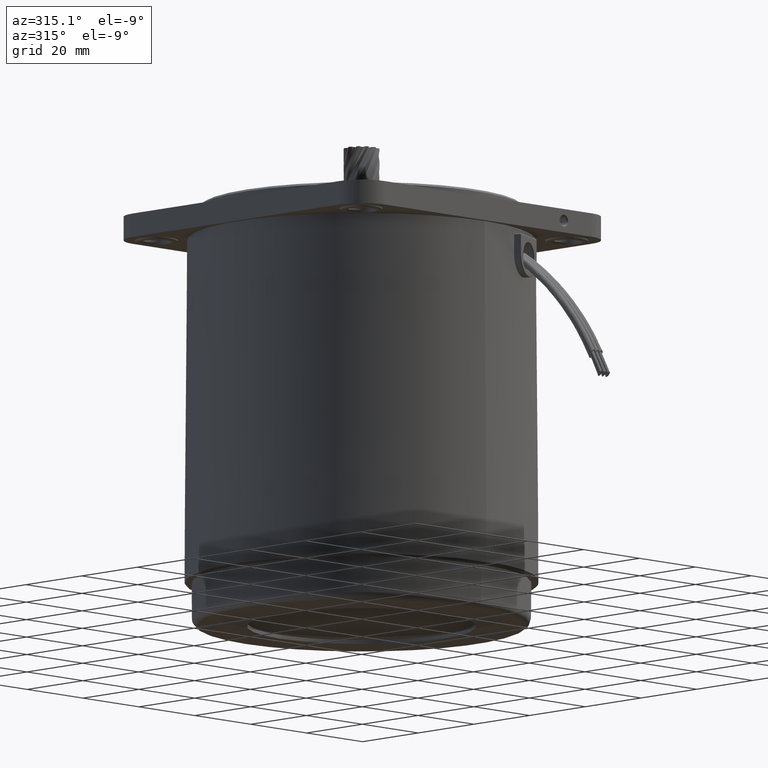
[diagram: clean part render]
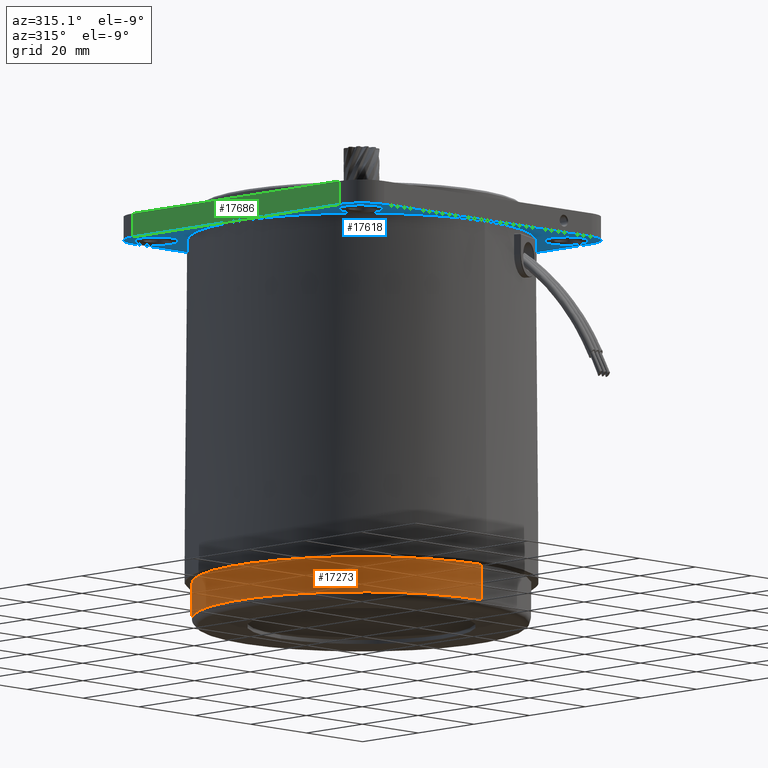
[diagram: same view with three faces highlighted in distinct colors, each labeled with its STEP entity id]
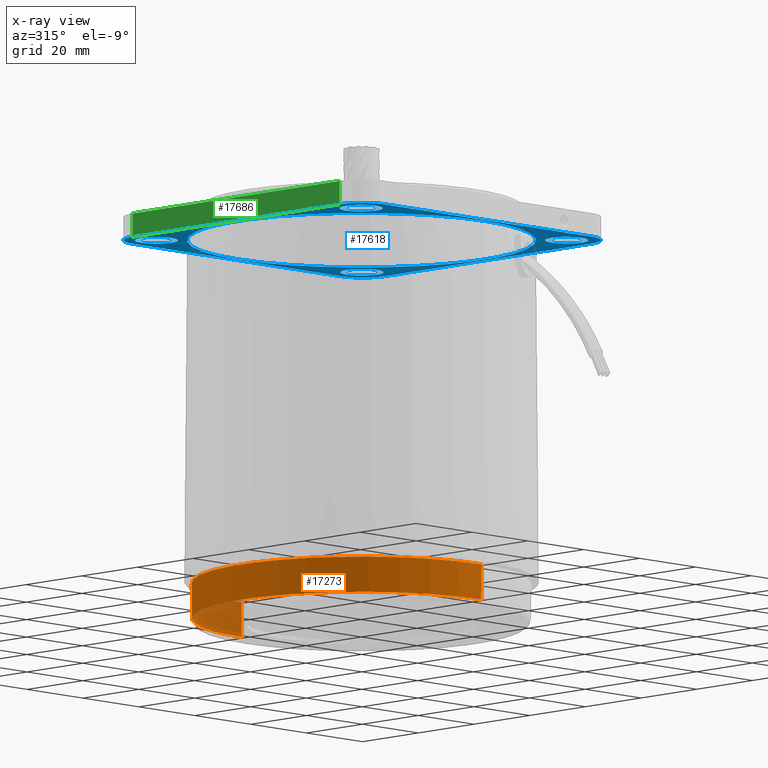
[diagram: x-ray of the same camera — body ghosted, the three highlighted faces saturated]
A machine part, auxiliary view with three faces highlighted in distinct colors.
The next image is the same camera in x-ray (body ghosted, the three faces saturated) — at least one of them is partly hidden behind the body in this view.
Their STEP definitions:

[orange] entity #17273 — the highlighted conical surface has half-angle 0.5 deg.
#11627 = CARTESIAN_POINT ( 'NONE',  ( 1.982546929003252200, -5.272918674955787400E-015, -43.01730142493838100 ) ) ;
#11689 = DIRECTION ( 'NONE',  ( 0.0000000000000000000, 0.0000000000000000000, -1.000000000000000000 ) ) ;
#11690 = DIRECTION ( 'NONE',  ( 1.000000000000000000, 0.0000000000000000000, 0.0000000000000000000 ) ) ;
#11691 = CARTESIAN_POINT ( 'NONE',  ( 1.982546929003252200, 0.0000000000000000000, 0.0000000000000000000 ) ) ;
#11701 = DIRECTION ( 'NONE',  ( 0.0000000000000000000, 0.0000000000000000000, 1.000000000000000000 ) ) ;
#11702 = DIRECTION ( 'NONE',  ( -1.000000000000000000, 0.0000000000000000000, 0.0000000000000000000 ) ) ;
#11703 = CARTESIAN_POINT ( 'NONE',  ( 10.99999999999999600, 0.0000000000000000000, 0.0000000000000000000 ) ) ;
#11704 = AXIS2_PLACEMENT_3D ( 'NONE', #11703, #11702, #11701 ) ;
#11706 = CARTESIAN_POINT ( 'NONE',  ( 0.0000000000000000000, -5.265981236333618500E-015, -43.00000000000000000 ) ) ;
#11707 = LINE ( 'NONE', #11706, #11734 ) ;
#11708 = CIRCLE ( 'NONE', #11714, 43.01730142493838100 ) ;
#11709 = CIRCLE ( 'NONE', #11704, 43.09599554569834400 ) ;
#11710 = CARTESIAN_POINT ( 'NONE',  ( 10.99999999999999600, 0.0000000000000000000, 43.09599554569834400 ) ) ;
#11714 = AXIS2_PLACEMENT_3D ( 'NONE', #11691, #11690, #11689 ) ;
#11724 = CONICAL_SURFACE ( 'NONE', #11732, 43.00000000000000000, 0.008726646259971666800 ) ;
#11725 = FACE_OUTER_BOUND ( 'NONE', #17262, .T. ) ;
#11732 = AXIS2_PLACEMENT_3D ( 'NONE', #11736, #11771, #11770 ) ;
#11733 = DIRECTION ( 'NONE',  ( 0.9999619230641713100, -1.068692376572941500E-018, -0.008726535498373953800 ) ) ;
#11734 = VECTOR ( 'NONE', #11733, 1000.000000000000000 ) ;
#11736 = CARTESIAN_POINT ( 'NONE',  ( 0.0000000000000000000, 0.0000000000000000000, 0.0000000000000000000 ) ) ;
#11741 = CARTESIAN_POINT ( 'NONE',  ( 1.982546929003252200, 0.0000000000000000000, 43.01730142493838100 ) ) ;
#11770 = DIRECTION ( 'NONE',  ( 0.0000000000000000000, 0.0000000000000000000, 1.000000000000000000 ) ) ;
#11771 = DIRECTION ( 'NONE',  ( 1.000000000000000000, 0.0000000000000000000, 0.0000000000000000000 ) ) ;
#11780 = CARTESIAN_POINT ( 'NONE',  ( 10.99999999999999600, -5.277737300110807500E-015, -43.09599554569834400 ) ) ;
#11820 = DIRECTION ( 'NONE',  ( 0.9999619230641713100, 0.0000000000000000000, 0.008726535498373953800 ) ) ;
#11821 = VECTOR ( 'NONE', #11820, 1000.000000000000000 ) ;
#11822 = CARTESIAN_POINT ( 'NONE',  ( 0.0000000000000000000, 0.0000000000000000000, 43.00000000000000000 ) ) ;
#11823 = LINE ( 'NONE', #11822, #11821 ) ;
#17220 = VERTEX_POINT ( 'NONE', #11627 ) ;
#17239 = EDGE_CURVE ( 'NONE', #17275, #17241, #11709, .T. ) ;
#17241 = VERTEX_POINT ( 'NONE', #11710 ) ;
#17245 = EDGE_CURVE ( 'NONE', #17255, #17220, #11708, .T. ) ;
#17255 = VERTEX_POINT ( 'NONE', #11741 ) ;
#17258 = ORIENTED_EDGE ( 'NONE', *, *, #17261, .T. ) ;
#17261 = EDGE_CURVE ( 'NONE', #17220, #17275, #11707, .T. ) ;
#17262 = EDGE_LOOP ( 'NONE', ( #17263, #17258, #17311, #17267 ) ) ;
#17263 = ORIENTED_EDGE ( 'NONE', *, *, #17245, .T. ) ;
#17267 = ORIENTED_EDGE ( 'NONE', *, *, #17323, .F. ) ;
#17273 = ADVANCED_FACE ( 'NONE', ( #11725 ), #11724, .T. ) ;
#17275 = VERTEX_POINT ( 'NONE', #11780 ) ;
#17311 = ORIENTED_EDGE ( 'NONE', *, *, #17239, .T. ) ;
#17323 = EDGE_CURVE ( 'NONE', #17255, #17241, #11823, .T. ) ;

[blue] entity #17618 — the highlighted planar face has unit normal (-0, -0, -1).
#4795 = EDGE_LOOP ( 'NONE', ( #17690, #17683 ) ) ;
#11751 = DIRECTION ( 'NONE',  ( 0.0000000000000000000, 0.0000000000000000000, 1.000000000000000000 ) ) ;
#11752 = DIRECTION ( 'NONE',  ( -1.000000000000000000, 0.0000000000000000000, 0.0000000000000000000 ) ) ;
#11753 = CARTESIAN_POINT ( 'NONE',  ( 99.00000000000000000, 36.76955262170045600, -36.76955262170045600 ) ) ;
#11754 = AXIS2_PLACEMENT_3D ( 'NONE', #11753, #11752, #11751 ) ;
#11755 = CIRCLE ( 'NONE', #11754, 5.499999999999998200 ) ;
#11793 = CARTESIAN_POINT ( 'NONE',  ( 99.00000000000000000, 36.76955262170085300, 42.26955262170007200 ) ) ;
#11803 = CARTESIAN_POINT ( 'NONE',  ( 99.00000000000000000, 36.76955262170045600, -42.26955262170045600 ) ) ;
#11813 = CIRCLE ( 'NONE', #11874, 5.499999999999998200 ) ;
#11824 = CARTESIAN_POINT ( 'NONE',  ( 99.00000000000000000, -36.76955262170020700, 42.26955262170071100 ) ) ;
#11871 = DIRECTION ( 'NONE',  ( 0.0000000000000000000, 0.0000000000000000000, 1.000000000000000000 ) ) ;
#11872 = DIRECTION ( 'NONE',  ( -1.000000000000000000, 0.0000000000000000000, 0.0000000000000000000 ) ) ;
#11873 = CARTESIAN_POINT ( 'NONE',  ( 99.00000000000000000, 36.76955262170085300, 36.76955262170007200 ) ) ;
#11874 = AXIS2_PLACEMENT_3D ( 'NONE', #11873, #11872, #11871 ) ;
#11876 = CARTESIAN_POINT ( 'NONE',  ( 99.00000000000000000, -36.76955262170058300, -42.26955262170031300 ) ) ;
#11881 = CARTESIAN_POINT ( 'NONE',  ( 99.00000000000000000, -36.76955262170020700, 36.76955262170072600 ) ) ;
#11885 = CARTESIAN_POINT ( 'NONE',  ( 99.00000000000000000, -36.76955262170058300, -31.26955262170031700 ) ) ;
#11925 = DIRECTION ( 'NONE',  ( 0.0000000000000000000, 0.0000000000000000000, 1.000000000000000000 ) ) ;
#11926 = DIRECTION ( 'NONE',  ( -1.000000000000000000, 0.0000000000000000000, 0.0000000000000000000 ) ) ;
#11927 = AXIS2_PLACEMENT_3D ( 'NONE', #11881, #11926, #11925 ) ;
#11931 = CIRCLE ( 'NONE', #11927, 5.499999999999991100 ) ;
#11932 = CARTESIAN_POINT ( 'NONE',  ( 99.00000000000000000, -36.76955262170020700, 31.26955262170073300 ) ) ;
#11982 = DIRECTION ( 'NONE',  ( 0.0000000000000000000, 0.0000000000000000000, 1.000000000000000000 ) ) ;
#11983 = DIRECTION ( 'NONE',  ( -1.000000000000000000, 0.0000000000000000000, 0.0000000000000000000 ) ) ;
#11984 = AXIS2_PLACEMENT_3D ( 'NONE', #11994, #11983, #11982 ) ;
#11993 = CIRCLE ( 'NONE', #11984, 5.499999999999998200 ) ;
#11994 = CARTESIAN_POINT ( 'NONE',  ( 99.00000000000000000, -36.76955262170058300, -36.76955262170031300 ) ) ;
#12141 = CARTESIAN_POINT ( 'NONE',  ( 99.00000000000000000, 36.76955262170045600, -31.26955262170046300 ) ) ;
#12162 = CARTESIAN_POINT ( 'NONE',  ( 99.00000000000000000, 36.76955262170085300, 31.26955262170007200 ) ) ;
#12185 = AXIS2_PLACEMENT_3D ( 'NONE', #12273, #12272, #12271 ) ;
#12236 = CARTESIAN_POINT ( 'NONE',  ( 99.00000000000000000, -5.464107230416688200E-015, 44.23604008871487300 ) ) ;
#12255 = CARTESIAN_POINT ( 'NONE',  ( 99.00000000000000000, 0.0000000000000000000, -44.23604008871487300 ) ) ;
#12271 = DIRECTION ( 'NONE',  ( 0.0000000000000000000, 0.0000000000000000000, -1.000000000000000000 ) ) ;
#12272 = DIRECTION ( 'NONE',  ( 1.000000000000000000, 0.0000000000000000000, 0.0000000000000000000 ) ) ;
#12273 = CARTESIAN_POINT ( 'NONE',  ( 99.00000000000000000, 0.0000000000000000000, 0.0000000000000000000 ) ) ;
#12276 = CIRCLE ( 'NONE', #12185, 44.23604008871487300 ) ;
#12482 = CARTESIAN_POINT ( 'NONE',  ( 99.00000000000000000, -45.00000000000000000, 36.99999999999995000 ) ) ;
#12486 = CARTESIAN_POINT ( 'NONE',  ( 99.00000000000000000, -37.00000000000000000, 37.00000000000000700 ) ) ;
#12489 = CIRCLE ( 'NONE', #12516, 44.23604008871487300 ) ;
#12495 = CARTESIAN_POINT ( 'NONE',  ( 99.00000000000000000, 45.29999999999999000, -37.29999999999998300 ) ) ;
#12507 = DIRECTION ( 'NONE',  ( 0.0000000000000000000, 0.0000000000000000000, 1.000000000000000000 ) ) ;
#12508 = DIRECTION ( 'NONE',  ( 1.000000000000000000, 0.0000000000000000000, -0.0000000000000000000 ) ) ;
#12509 = AXIS2_PLACEMENT_3D ( 'NONE', #12486, #12508, #12507 ) ;
#12511 = CARTESIAN_POINT ( 'NONE',  ( 99.00000000000000000, -36.99999999999994300, 45.00000000000000700 ) ) ;
#12513 = DIRECTION ( 'NONE',  ( 0.0000000000000000000, 0.0000000000000000000, -1.000000000000000000 ) ) ;
#12514 = DIRECTION ( 'NONE',  ( 1.000000000000000000, 0.0000000000000000000, 0.0000000000000000000 ) ) ;
#12515 = CARTESIAN_POINT ( 'NONE',  ( 99.00000000000000000, 0.0000000000000000000, 0.0000000000000000000 ) ) ;
#12516 = AXIS2_PLACEMENT_3D ( 'NONE', #12515, #12514, #12513 ) ;
#12520 = DIRECTION ( 'NONE',  ( 0.0000000000000000000, 0.0000000000000000000, 1.000000000000000000 ) ) ;
#12521 = DIRECTION ( 'NONE',  ( -1.000000000000000000, 0.0000000000000000000, 0.0000000000000000000 ) ) ;
#12522 = CARTESIAN_POINT ( 'NONE',  ( 99.00000000000000000, -36.76955262170058300, -36.76955262170031300 ) ) ;
#12523 = AXIS2_PLACEMENT_3D ( 'NONE', #12522, #12521, #12520 ) ;
#12524 = CIRCLE ( 'NONE', #12523, 5.499999999999998200 ) ;
#12525 = CIRCLE ( 'NONE', #12509, 8.000000000000000000 ) ;
#12776 = DIRECTION ( 'NONE',  ( 0.0000000000000000000, 0.0000000000000000000, 1.000000000000000000 ) ) ;
#12820 = DIRECTION ( 'NONE',  ( -0.0000000000000000000, -9.339022750884561700E-017, 1.000000000000000000 ) ) ;
#12821 = VECTOR ( 'NONE', #12820, 1000.000000000000000 ) ;
#12822 = CIRCLE ( 'NONE', #12870, 5.499999999999998200 ) ;
#12823 = LINE ( 'NONE', #12862, #12821 ) ;
#12824 = FACE_BOUND ( 'NONE', #17666, .T. ) ;
#12825 = DIRECTION ( 'NONE',  ( 0.0000000000000000000, 0.0000000000000000000, 1.000000000000000000 ) ) ;
#12826 = DIRECTION ( 'NONE',  ( 1.000000000000000000, 0.0000000000000000000, -0.0000000000000000000 ) ) ;
#12827 = CARTESIAN_POINT ( 'NONE',  ( 99.00000000000000000, 37.29999999999998300, -37.29999999999998300 ) ) ;
#12838 = CIRCLE ( 'NONE', #12850, 8.000000000000003600 ) ;
#12839 = FACE_BOUND ( 'NONE', #17625, .T. ) ;
#12840 = FACE_OUTER_BOUND ( 'NONE', #17539, .T. ) ;
#12842 = CARTESIAN_POINT ( 'NONE',  ( 99.00000000000000000, -37.00000000000000000, 37.00000000000000700 ) ) ;
#12843 = PLANE ( 'NONE',  #12848 ) ;
#12844 = FACE_BOUND ( 'NONE', #17695, .T. ) ;
#12845 = FACE_BOUND ( 'NONE', #4795, .T. ) ;
#12846 = DIRECTION ( 'NONE',  ( -1.000000000000000000, -0.0000000000000000000, 0.0000000000000000000 ) ) ;
#12847 = FACE_BOUND ( 'NONE', #17600, .T. ) ;
#12848 = AXIS2_PLACEMENT_3D ( 'NONE', #12842, #12846, #12776 ) ;
#12849 = CARTESIAN_POINT ( 'NONE',  ( 99.00000000000000000, 45.29999999999998300, 37.00000000000000700 ) ) ;
#12850 = AXIS2_PLACEMENT_3D ( 'NONE', #12827, #12826, #12825 ) ;
#12851 = CARTESIAN_POINT ( 'NONE',  ( 99.00000000000000000, 37.29999999999998300, -45.29999999999998300 ) ) ;
#12862 = CARTESIAN_POINT ( 'NONE',  ( 99.00000000000000000, 45.29999999999998300, 37.00000000000000700 ) ) ;
#12866 = CARTESIAN_POINT ( 'NONE',  ( 99.00000000000000000, -45.00000000000000000, -37.29999999999998300 ) ) ;
#12867 = DIRECTION ( 'NONE',  ( 0.0000000000000000000, 0.0000000000000000000, 1.000000000000000000 ) ) ;
#12868 = DIRECTION ( 'NONE',  ( -1.000000000000000000, 0.0000000000000000000, 0.0000000000000000000 ) ) ;
#12869 = CARTESIAN_POINT ( 'NONE',  ( 99.00000000000000000, 36.76955262170085300, 36.76955262170007200 ) ) ;
#12870 = AXIS2_PLACEMENT_3D ( 'NONE', #12869, #12868, #12867 ) ;
#12899 = DIRECTION ( 'NONE',  ( 0.0000000000000000000, 0.0000000000000000000, 1.000000000000000000 ) ) ;
#12900 = DIRECTION ( 'NONE',  ( 1.000000000000000000, 0.0000000000000000000, -0.0000000000000000000 ) ) ;
#12901 = CARTESIAN_POINT ( 'NONE',  ( 99.00000000000000000, 37.29999999999998300, 37.00000000000000700 ) ) ;
#12902 = AXIS2_PLACEMENT_3D ( 'NONE', #12901, #12900, #12899 ) ;
#12906 = CIRCLE ( 'NONE', #12902, 8.000000000000000000 ) ;
#13009 = CARTESIAN_POINT ( 'NONE',  ( 99.00000000000000000, -36.76955262170020700, 36.76955262170072600 ) ) ;
#13011 = AXIS2_PLACEMENT_3D ( 'NONE', #13009, #13044, #13043 ) ;
#13013 = DIRECTION ( 'NONE',  ( -0.0000000000000000000, -1.000000000000000000, -0.0000000000000000000 ) ) ;
#13014 = VECTOR ( 'NONE', #13013, 1000.000000000000000 ) ;
#13015 = CARTESIAN_POINT ( 'NONE',  ( 99.00000000000000000, -36.99999999999994300, 45.00000000000000700 ) ) ;
#13016 = CARTESIAN_POINT ( 'NONE',  ( 99.00000000000000000, -37.00000000000000000, -45.29999999999998300 ) ) ;
#13017 = LINE ( 'NONE', #13015, #13014 ) ;
#13018 = DIRECTION ( 'NONE',  ( 0.0000000000000000000, 0.0000000000000000000, -1.000000000000000000 ) ) ;
#13019 = VECTOR ( 'NONE', #13018, 1000.000000000000000 ) ;
#13020 = CARTESIAN_POINT ( 'NONE',  ( 99.00000000000000000, -45.00000000000000000, 36.99999999999995000 ) ) ;
#13021 = LINE ( 'NONE', #13020, #13019 ) ;
#13022 = CARTESIAN_POINT ( 'NONE',  ( 99.00000000000000000, 37.29999999999998300, 45.00000000000000700 ) ) ;
#13036 = DIRECTION ( 'NONE',  ( 0.0000000000000000000, 0.0000000000000000000, -1.000000000000000000 ) ) ;
#13037 = DIRECTION ( 'NONE',  ( 1.000000000000000000, 0.0000000000000000000, 0.0000000000000000000 ) ) ;
#13038 = CARTESIAN_POINT ( 'NONE',  ( 99.00000000000000000, -37.00000000000000000, -37.29999999999998300 ) ) ;
#13040 = CARTESIAN_POINT ( 'NONE',  ( 99.00000000000000000, -37.00000000000000000, -45.29999999999998300 ) ) ;
#13041 = LINE ( 'NONE', #13040, #13207 ) ;
#13043 = DIRECTION ( 'NONE',  ( 0.0000000000000000000, 0.0000000000000000000, 1.000000000000000000 ) ) ;
#13044 = DIRECTION ( 'NONE',  ( -1.000000000000000000, 0.0000000000000000000, 0.0000000000000000000 ) ) ;
#13141 = AXIS2_PLACEMENT_3D ( 'NONE', #13038, #13037, #13036 ) ;
#13142 = CIRCLE ( 'NONE', #13011, 5.499999999999991100 ) ;
#13144 = CIRCLE ( 'NONE', #13141, 8.000000000000000000 ) ;
#13206 = DIRECTION ( 'NONE',  ( 0.0000000000000000000, 1.000000000000000000, 0.0000000000000000000 ) ) ;
#13207 = VECTOR ( 'NONE', #13206, 1000.000000000000000 ) ;
#13634 = DIRECTION ( 'NONE',  ( 0.0000000000000000000, 0.0000000000000000000, 1.000000000000000000 ) ) ;
#13635 = DIRECTION ( 'NONE',  ( -1.000000000000000000, 0.0000000000000000000, 0.0000000000000000000 ) ) ;
#13636 = CARTESIAN_POINT ( 'NONE',  ( 99.00000000000000000, 36.76955262170045600, -36.76955262170045600 ) ) ;
#13637 = AXIS2_PLACEMENT_3D ( 'NONE', #13636, #13635, #13634 ) ;
#13641 = CIRCLE ( 'NONE', #13637, 5.499999999999998200 ) ;
#17283 = EDGE_CURVE ( 'NONE', #17481, #17297, #11755, .T. ) ;
#17297 = VERTEX_POINT ( 'NONE', #11803 ) ;
#17300 = VERTEX_POINT ( 'NONE', #11793 ) ;
#17327 = VERTEX_POINT ( 'NONE', #11824 ) ;
#17329 = EDGE_CURVE ( 'NONE', #17300, #17501, #11813, .T. ) ;
#17360 = VERTEX_POINT ( 'NONE', #11885 ) ;
#17362 = VERTEX_POINT ( 'NONE', #11876 ) ;
#17364 = EDGE_CURVE ( 'NONE', #17327, #17395, #11931, .T. ) ;
#17395 = VERTEX_POINT ( 'NONE', #11932 ) ;
#17398 = EDGE_CURVE ( 'NONE', #17360, #17362, #11993, .T. ) ;
#17481 = VERTEX_POINT ( 'NONE', #12141 ) ;
#17501 = VERTEX_POINT ( 'NONE', #12162 ) ;
#17525 = VERTEX_POINT ( 'NONE', #12236 ) ;
#17539 = EDGE_LOOP ( 'NONE', ( #17615, #17637, #17645, #17616, #17639, #17638, #17644, #17646 ) ) ;
#17541 = EDGE_CURVE ( 'NONE', #17525, #17570, #12276, .T. ) ;
#17569 = ORIENTED_EDGE ( 'NONE', *, *, #17594, .F. ) ;
#17570 = VERTEX_POINT ( 'NONE', #12255 ) ;
#17578 = VERTEX_POINT ( 'NONE', #12495 ) ;
#17594 = EDGE_CURVE ( 'NONE', #17362, #17360, #12524, .T. ) ;
#17595 = EDGE_CURVE ( 'NONE', #17570, #17525, #12489, .T. ) ;
#17597 = VERTEX_POINT ( 'NONE', #12482 ) ;
#17600 = EDGE_LOOP ( 'NONE', ( #17612, #17569 ) ) ;
#17601 = EDGE_CURVE ( 'NONE', #17602, #17597, #12525, .T. ) ;
#17602 = VERTEX_POINT ( 'NONE', #12511 ) ;
#17612 = ORIENTED_EDGE ( 'NONE', *, *, #17398, .F. ) ;
#17613 = ORIENTED_EDGE ( 'NONE', *, *, #17623, .F. ) ;
#17615 = ORIENTED_EDGE ( 'NONE', *, *, #17601, .F. ) ;
#17616 = ORIENTED_EDGE ( 'NONE', *, *, #17634, .F. ) ;
#17617 = EDGE_CURVE ( 'NONE', #17635, #17578, #12838, .T. ) ;
#17618 = ADVANCED_FACE ( 'NONE', ( #12847, #12839, #12840, #12845, #12844, #12824 ), #12843, .T. ) ;
#17619 = ORIENTED_EDGE ( 'NONE', *, *, #17329, .F. ) ;
#17622 = VERTEX_POINT ( 'NONE', #12849 ) ;
#17623 = EDGE_CURVE ( 'NONE', #17501, #17300, #12822, .T. ) ;
#17625 = EDGE_LOOP ( 'NONE', ( #17619, #17613 ) ) ;
#17634 = EDGE_CURVE ( 'NONE', #17578, #17622, #12823, .T. ) ;
#17635 = VERTEX_POINT ( 'NONE', #12851 ) ;
#17636 = EDGE_CURVE ( 'NONE', #17622, #17647, #12906, .T. ) ;
#17637 = ORIENTED_EDGE ( 'NONE', *, *, #17648, .F. ) ;
#17638 = ORIENTED_EDGE ( 'NONE', *, *, #17670, .F. ) ;
#17639 = ORIENTED_EDGE ( 'NONE', *, *, #17617, .F. ) ;
#17640 = VERTEX_POINT ( 'NONE', #12866 ) ;
#17642 = EDGE_CURVE ( 'NONE', #17597, #17640, #13021, .T. ) ;
#17644 = ORIENTED_EDGE ( 'NONE', *, *, #17667, .F. ) ;
#17645 = ORIENTED_EDGE ( 'NONE', *, *, #17636, .F. ) ;
#17646 = ORIENTED_EDGE ( 'NONE', *, *, #17642, .F. ) ;
#17647 = VERTEX_POINT ( 'NONE', #13022 ) ;
#17648 = EDGE_CURVE ( 'NONE', #17647, #17602, #13017, .T. ) ;
#17657 = VERTEX_POINT ( 'NONE', #13016 ) ;
#17659 = ORIENTED_EDGE ( 'NONE', *, *, #17364, .F. ) ;
#17660 = ORIENTED_EDGE ( 'NONE', *, *, #17663, .F. ) ;
#17663 = EDGE_CURVE ( 'NONE', #17395, #17327, #13142, .T. ) ;
#17664 = ORIENTED_EDGE ( 'NONE', *, *, #17283, .F. ) ;
#17666 = EDGE_LOOP ( 'NONE', ( #17664, #17668 ) ) ;
#17667 = EDGE_CURVE ( 'NONE', #17640, #17657, #13144, .T. ) ;
#17668 = ORIENTED_EDGE ( 'NONE', *, *, #17684, .F. ) ;
#17670 = EDGE_CURVE ( 'NONE', #17657, #17635, #13041, .T. ) ;
#17683 = ORIENTED_EDGE ( 'NONE', *, *, #17541, .T. ) ;
#17684 = EDGE_CURVE ( 'NONE', #17297, #17481, #13641, .T. ) ;
#17690 = ORIENTED_EDGE ( 'NONE', *, *, #17595, .T. ) ;
#17695 = EDGE_LOOP ( 'NONE', ( #17659, #17660 ) ) ;

[green] entity #17686 — the highlighted planar face has unit normal (1, 0, -0).
#12482 = CARTESIAN_POINT ( 'NONE',  ( 99.00000000000000000, -45.00000000000000000, 36.99999999999995000 ) ) ;
#12866 = CARTESIAN_POINT ( 'NONE',  ( 99.00000000000000000, -45.00000000000000000, -37.29999999999998300 ) ) ;
#13018 = DIRECTION ( 'NONE',  ( 0.0000000000000000000, 0.0000000000000000000, -1.000000000000000000 ) ) ;
#13019 = VECTOR ( 'NONE', #13018, 1000.000000000000000 ) ;
#13020 = CARTESIAN_POINT ( 'NONE',  ( 99.00000000000000000, -45.00000000000000000, 36.99999999999995000 ) ) ;
#13021 = LINE ( 'NONE', #13020, #13019 ) ;
#13045 = DIRECTION ( 'NONE',  ( -1.000000000000000000, -0.0000000000000000000, -0.0000000000000000000 ) ) ;
#13046 = VECTOR ( 'NONE', #13045, 1000.000000000000000 ) ;
#13047 = CARTESIAN_POINT ( 'NONE',  ( 105.0000000000000100, -45.00000000000000000, 36.99999999999995000 ) ) ;
#13048 = LINE ( 'NONE', #13047, #13046 ) ;
#13629 = DIRECTION ( 'NONE',  ( 0.0000000000000000000, -0.0000000000000000000, 1.000000000000000000 ) ) ;
#13630 = DIRECTION ( 'NONE',  ( -0.0000000000000000000, 1.000000000000000000, 0.0000000000000000000 ) ) ;
#13631 = CARTESIAN_POINT ( 'NONE',  ( 105.0000000000000100, -45.00000000000000000, 36.99999999999995000 ) ) ;
#13632 = AXIS2_PLACEMENT_3D ( 'NONE', #13631, #13630, #13629 ) ;
#13638 = CARTESIAN_POINT ( 'NONE',  ( 105.0000000000000100, -45.00000000000000000, -37.29999999999998300 ) ) ;
#13640 = PLANE ( 'NONE',  #13632 ) ;
#13642 = FACE_OUTER_BOUND ( 'NONE', #17692, .T. ) ;
#13816 = DIRECTION ( 'NONE',  ( -1.000000000000000000, -0.0000000000000000000, -0.0000000000000000000 ) ) ;
#13817 = VECTOR ( 'NONE', #13816, 1000.000000000000000 ) ;
#13818 = CARTESIAN_POINT ( 'NONE',  ( 105.0000000000000100, -45.00000000000000000, -37.29999999999998300 ) ) ;
#13819 = LINE ( 'NONE', #13818, #13817 ) ;
#13823 = CARTESIAN_POINT ( 'NONE',  ( 105.0000000000000100, -45.00000000000000000, 36.99999999999995000 ) ) ;
#13957 = CARTESIAN_POINT ( 'NONE',  ( 105.0000000000000100, -45.00000000000000000, 36.99999999999995000 ) ) ;
#13989 = DIRECTION ( 'NONE',  ( 0.0000000000000000000, 0.0000000000000000000, -1.000000000000000000 ) ) ;
#13990 = VECTOR ( 'NONE', #13989, 1000.000000000000000 ) ;
#13992 = LINE ( 'NONE', #13957, #13990 ) ;
#17597 = VERTEX_POINT ( 'NONE', #12482 ) ;
#17640 = VERTEX_POINT ( 'NONE', #12866 ) ;
#17642 = EDGE_CURVE ( 'NONE', #17597, #17640, #13021, .T. ) ;
#17656 = EDGE_CURVE ( 'NONE', #17713, #17597, #13048, .T. ) ;
#17665 = ORIENTED_EDGE ( 'NONE', *, *, #17715, .F. ) ;
#17686 = ADVANCED_FACE ( 'NONE', ( #13642 ), #13640, .F. ) ;
#17691 = VERTEX_POINT ( 'NONE', #13638 ) ;
#17692 = EDGE_LOOP ( 'NONE', ( #17742, #17665, #17744, #17743 ) ) ;
#17713 = VERTEX_POINT ( 'NONE', #13823 ) ;
#17715 = EDGE_CURVE ( 'NONE', #17691, #17640, #13819, .T. ) ;
#17735 = EDGE_CURVE ( 'NONE', #17713, #17691, #13992, .T. ) ;
#17742 = ORIENTED_EDGE ( 'NONE', *, *, #17642, .T. ) ;
#17743 = ORIENTED_EDGE ( 'NONE', *, *, #17656, .T. ) ;
#17744 = ORIENTED_EDGE ( 'NONE', *, *, #17735, .F. ) ;